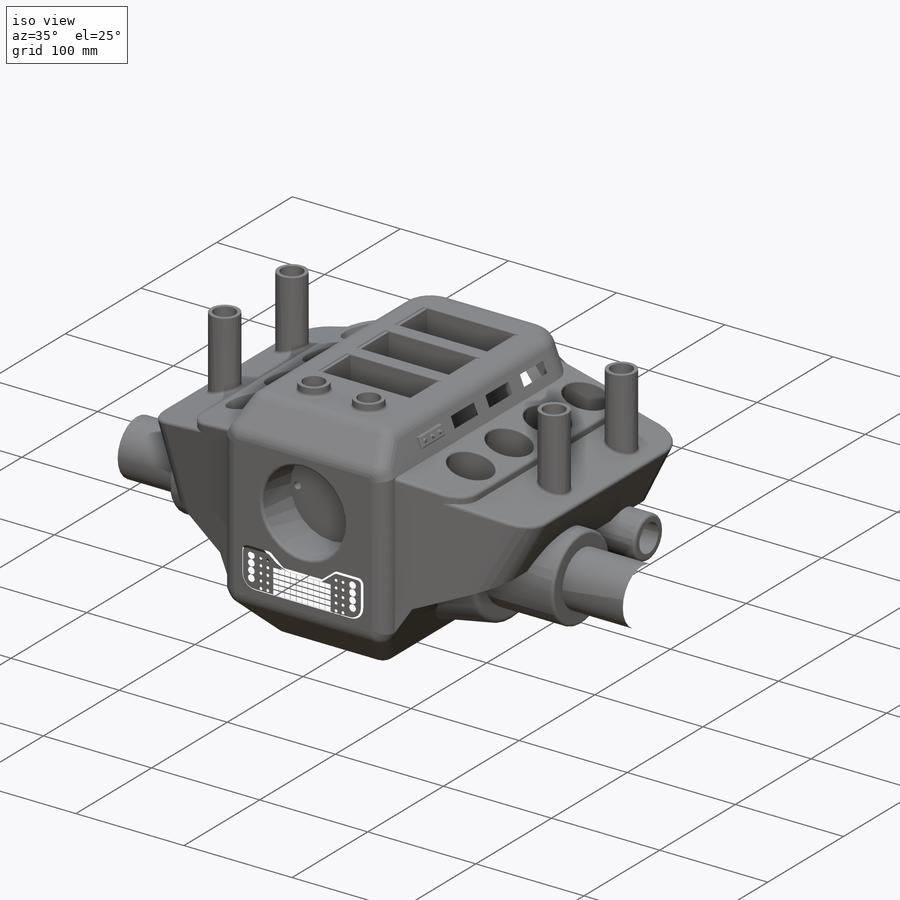
[diagram: iso view]
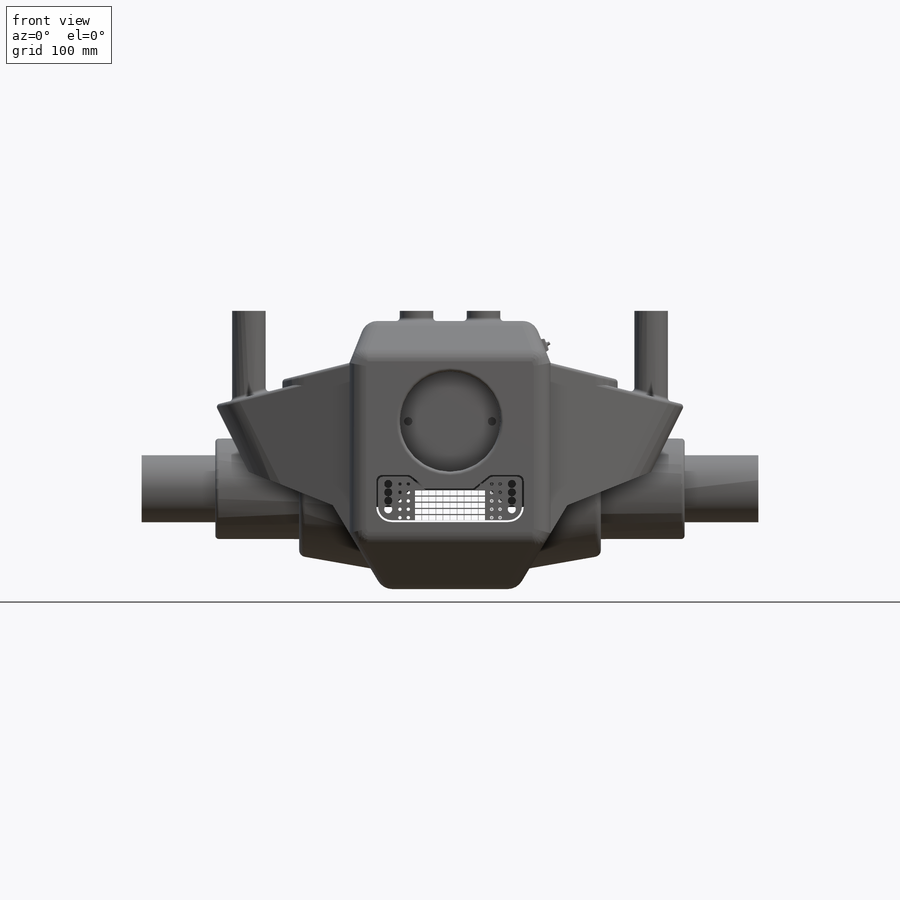
[diagram: front view]
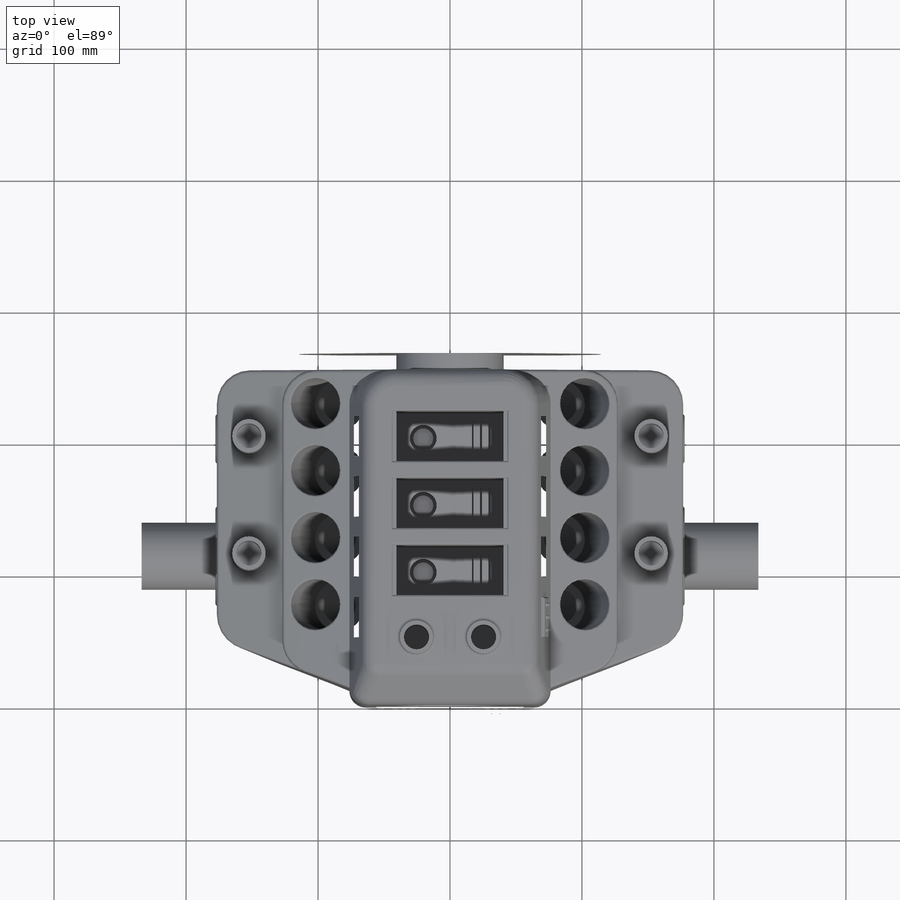
[diagram: top view]
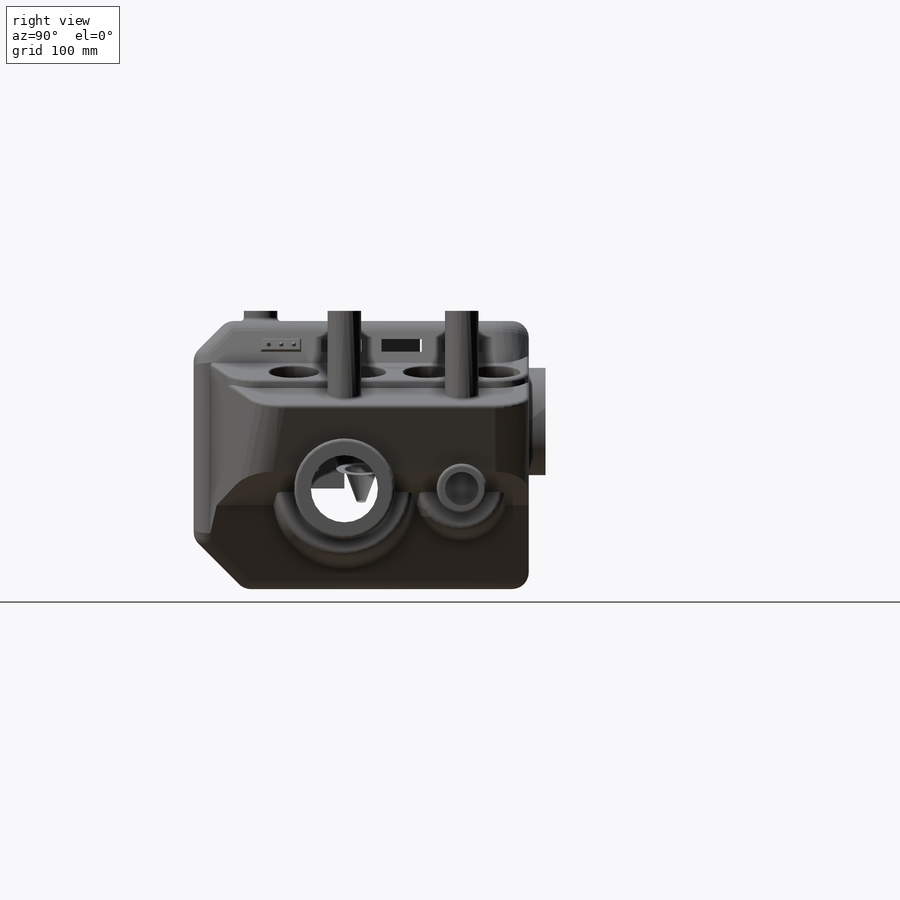
[diagram: right view]
SOLIDWORKS PART (.sldprt)
format: sldprt  version: not decoded by parser v0  size: 3,907,072 bytes
history: native  units: mm
features: sketch x32, fillet x28, cut_extrude x17, extrude x15, mirror x10, plane x2, chamfer x2, material x1, pattern_linear x1 (+13 scaffold rows collapsed)
feature tree (121):
  scaffold x13  (default folders/planes/origin — collapsed)
  material  "Material <not specified>"
  sketch  "Sketch1"  dims[D1=76.2mm D2=127.0mm D3=50.8mm D4=38.1mm D5=63.5mm D6=63.5mm D7=25.4mm D8=25.4mm D9=50.8mm D10=63.5mm D11=76.2mm D12=12.7mm D13=50.8mm D14=12.7mm D15=6.35mm D16=12.7mm]
  extrude  "Boss-Extrude1"  Depth=254mm
  fillet  "Fillet1"  Radius=2.54mm
  plane  "Plane1"  Offset=38.1mm
  sketch  "Sketch3"
  extrude  "Boss-Extrude2"  Depth=228.6mm
  sketch  "Sketch4"  dims[D1=63.5mm D2=6.35mm]
  cut_extrude  "Cut-Extrude1"  Depth=12.7mm
  sketch  "Sketch5"  dims[D1=12.7mm D2=50.8mm]
  cut_extrude  "Cut-Extrude2"  [1 undecoded]
  chamfer  "Chamfer1"  Distance=38.1mm Angle=45deg
  chamfer  "Chamfer2"  Distance=25.4mm Angle=45deg
  fillet  "Fillet2"  Radius=12.7mm
  fillet  "Fillet3"  Radius=25.4mm
  plane  "Plane2"  Offset=114.3mm
  sketch  "Sketch7"  dims[D1=101.6mm D2=63.5mm D3=88.9mm D4=69.85mm D5=50.8mm]
  extrude  "Boss-Extrude3"  [1 undecoded]
  mirror  "Mirror1"
  fillet  "Fillet4"  Radius=5.08mm
  sketch  "Sketch8"  dims[D1=76.2mm D2=38.1mm]
  extrude  "Boss-Extrude4"  Depth=63.5mm
  mirror  "Mirror2"
  fillet  "Fillet5"  Radius=2.54mm
  sketch  "Sketch9"  dims[D1=50.8mm]
  extrude  "Boss-Extrude5"  Depth=101.6mm
  sketch  "Sketch10"  dims[D1=25.4mm]
  cut_extrude  "Cut-Extrude3"  Depth=50.8mm
  mirror  "Mirror3"
  fillet  "Fillet6"  Radius=25.4mm
  fillet  "Fillet7"  Radius=25.4mm
  fillet  "Fillet8"  Radius=2.54mm
  fillet  "Fillet9"  Radius=12.7mm
  sketch  "Sketch11"  dims[c1.D1=12.7mm c1.D2=12.7mm c1.D3=19.05mm c1.D4=33.02mm c1.D5=~37.676667mm c2.D4=38.1mm]
  cut_extrude  "Cut-Extrude4"  Depth=101.6mm
  fillet  "Fillet10"  Radius=1.27mm
  sketch  "Sketch12"  dims[D3=25.4mm D1=25.4mm D2=50.8mm D4=63.5mm D5=127.0mm D6=88.9mm]
  extrude  "Boss-Extrude6"  Depth=63.5mm
  fillet  "Fillet11"  Radius=2.54mm
  sketch  "Sketch13"  dims[D1=19.05mm]
  cut_extrude  "Cut-Extrude5"  Depth=50.8mm
  sketch  "Sketch14"  dims[D4=38.1mm D1=152.4mm D2=50.8mm D3=50.8mm]
  cut_extrude  "Cut-Extrude6"  Depth=76.2mm
  mirror  "Mirror4"
  fillet  "Fillet12"  Radius=1.27mm
  sketch  "Sketch15"  dims[D1=~87.218764mm D2=81.28mm]
  extrude  "Boss-Extrude7"  Depth=100.33mm
  sketch  "Sketch16"  dims[D2=20.32mm D1=20.32mm D3=10.16mm D4=5.08mm D5=5.08mm D6=25.4mm D7=1.27mm D8=3.0]
  cut_extrude  "Cut-Extrude7"  Depth=25.4mm
  sketch  "Sketch17"  dims[D1=15.24mm]
  extrude  "Boss-Extrude8"  Depth=12.7mm
  sketch  "Sketch18"  dims[D1=25.4mm]
  cut_extrude  "Cut-Extrude8"  Depth=25.4mm
  mirror  "Mirror5"
  sketch  "Sketch19"  dims[D1=6.35mm D2=30.48mm D3=10.16mm D4=20.32mm]
  extrude  "Boss-Extrude9"  Depth=2.54mm
  fillet  "Fillet13"  Radius=1.016mm
  sketch  "Sketch20"  dims[D1=2.54mm D2=19.05mm]
  extrude  "Boss-Extrude10"  Depth=2.54mm
  fillet  "Fillet14"  Radius=1.016mm
  fillet  "Fillet15"  Radius=0.508mm
  sketch  "Sketch21"  dims[D1=0.635mm]
  cut_extrude  "Cut-Extrude9"  Depth=3.81mm
  pattern_linear  "LPattern1"  Count1=4 Count2=1 Spacing1=45.72mm Spacing2=2.54mm
  mirror  "Mirror6"
  sketch  "Sketch22"  dims[D1=50.8mm D2=35.56mm D3=12.7mm D4=10.16mm D5=25.4mm D6=35.56mm]
  extrude  "Boss-Extrude11"  Depth=1.27mm
  fillet  "Fillet16"  Radius=5.08mm
  fillet  "Fillet17"  Radius=12.7mm
  sketch  "Sketch23"  dims[D2=5.08mm D3=2.54mm D1=3.81mm D4=8.89mm D5=6.35mm D7=6.35mm D9=6.35mm D10=1.016mm D11=5.08mm D12=0.254mm D13=0.254mm D14=0.254mm D15=0.254mm D16=3.81mm D18=1.016mm D19=0.254mm D6=5.0 D8=2.0 D17=5.0]
  extrude  "Boss-Extrude12"  Depth=3.81mm
  cut_extrude  "Cut-Extrude10"  [1 undecoded]
  sketch  "Sketch23<4>"  dims[D1=0.508mm D3=20.0deg]
  fillet  "Fillet18"  Radius=0.508mm
  fillet  "Fillet19"  Radius=1.27mm
  fillet  "Fillet20"  Radius=0.508mm
  fillet  "Fillet21"  Radius=1.27mm
  sketch  "Sketch24"  dims[D1=0.635mm D2=5.0]
  cut_extrude  "Cut-Extrude11"  Depth=3.81mm
  mirror  "Mirror7"
  fillet  "Fillet22"  Radius=2.54mm
  sketch  "Sketch25"  dims[D1=38.1mm]
  cut_extrude  "Cut-Extrude12"  Depth=50.8mm
  mirror  "Mirror8"
  sketch  "Sketch26"  dims[D1=25.4mm]
  extrude  "Boss-Extrude13"  Depth=50.8mm
  mirror  "Mirror9"
  sketch  "Sketch27"
  cut_extrude  "Cut-Extrude13"  Depth=45.72mm
  mirror  "Mirror10"
  sketch  "Sketch28"  dims[D1=57.15mm D2=50.8mm D3=76.2mm D4=45.72mm D5=50.8mm D6=38.1mm D7=38.1mm D8=50.8mm D9=12.7mm]
  extrude  "Boss-Extrude14"  Depth=127mm
  fillet  "Fillet23"  Radius=12.7mm
  fillet  "Fillet24"  Radius=12.7mm
  fillet  "Fillet25"  Radius=38.1mm
  sketch  "Sketch29"  dims[D1=63.5mm D2=38.1mm D3=139.7mm]
  cut_extrude  "Cut-Extrude14"  Depth=50.8mm
  sketch  "Sketch30"  dims[D1=50.8mm D2=6.35mm]
  cut_extrude  "Cut-Extrude15"  Depth=12.7mm
  sketch  "Sketch31"  dims[D1=5.08mm D2=5.08mm D3=15.24mm]
  extrude  "Boss-Extrude15"  Depth=20.32mm
  fillet  "Fillet26"  Radius=7.62mm
  sketch  "Sketch32"  dims[D1=10.16mm]
  cut_extrude  "Cut-Extrude16"  [1 undecoded]
  sketch  "Sketch33"
  cut_extrude  "Cut-Extrude17"  Depth=88.9mm
  fillet  "Fillet27"  Radius=1.27mm
  fillet  "Fillet28"  Radius=1.27mm
decode coverage: 88 of 105 modeling features carry decoded parameters
note: ~ marks probable driven/reference dimensions
note: 4 parameter values undecoded
summary: no parameter record found for 4 features
note: suppression state not decoded; provenance and decode notes live in map.json
